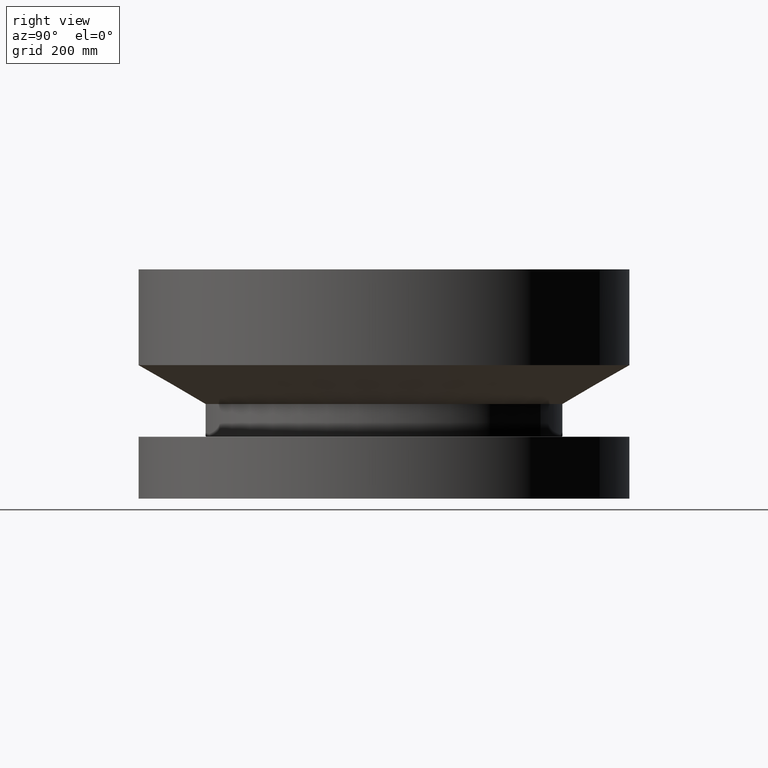
[diagram: clean part render]
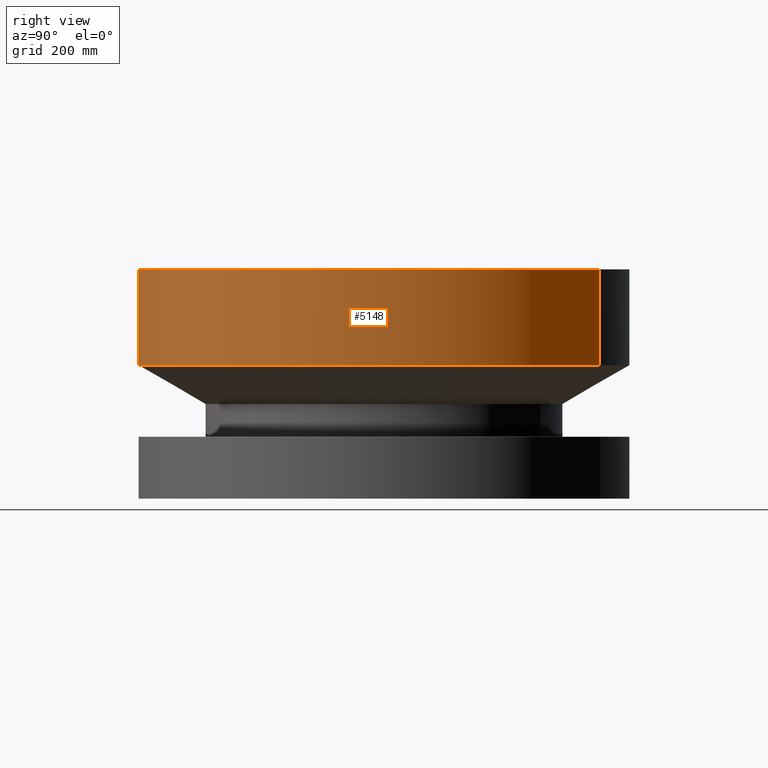
[diagram: same view with one face highlighted and labeled with its STEP entity id]
A machine part, right view. The second image highlights one B-rep face of the part: STEP entity #5148.
In plain terms, the highlighted cylindrical surface (partial cylindrical patch) has radius 428.625 mm, axis along (0, 0, -1).
Its self-contained STEP definition (entity closure, byte-faithful):
#501=AXIS2_PLACEMENT_3D('Cylinder Axis2P3D',#498,#499,#500) ;
#2251=AXIS2_PLACEMENT_3D('Circle Axis2P3D',#2249,#2250,$) ;
#5132=AXIS2_PLACEMENT_3D('Circle Axis2P3D',#5130,#5131,$) ;
#498=CARTESIAN_POINT('Axis2P3D Location',(0.,0.,7.75000000003)) ;
#2246=CARTESIAN_POINT('Vertex',(8.09030596398,14.809205732,9.17024499504)) ;
#2249=CARTESIAN_POINT('Axis2P3D Location',(0.,0.,9.17024499504)) ;
#2253=CARTESIAN_POINT('Vertex',(-8.09030596398,-14.809205732,9.17024499504)) ;
#5123=CARTESIAN_POINT('Line Origine',(8.09030596398,14.809205732,12.4601224976)) ;
#5127=CARTESIAN_POINT('Vertex',(8.09030596398,14.809205732,15.7500000001)) ;
#5130=CARTESIAN_POINT('Axis2P3D Location',(0.,0.,15.7500000001)) ;
#5134=CARTESIAN_POINT('Vertex',(-8.09030596398,-14.809205732,15.7500000001)) ;
#5137=CARTESIAN_POINT('Line Origine',(-8.09030596398,-14.809205732,12.4601224976)) ;
#499=DIRECTION('Axis2P3D Direction',(0.,0.,-0.0393700787402)) ;
#500=DIRECTION('Axis2P3D XDirection',(-0.0188750212049,-0.0345504945626,0.)) ;
#2250=DIRECTION('Axis2P3D Direction',(-0.,0.,0.0393700787402)) ;
#5124=DIRECTION('Vector Direction',(0.,0.,-0.0393700787402)) ;
#5131=DIRECTION('Axis2P3D Direction',(0.,0.,-0.0393700787402)) ;
#5138=DIRECTION('Vector Direction',(0.,0.,-0.0393700787402)) ;
#5125=VECTOR('Line Direction',#5124,0.0393700787402) ;
#5139=VECTOR('Line Direction',#5138,0.0393700787402) ;
#5143=ORIENTED_EDGE('',*,*,#2255,.F.) ;
#5144=ORIENTED_EDGE('',*,*,#5129,.T.) ;
#5145=ORIENTED_EDGE('',*,*,#5136,.T.) ;
#5146=ORIENTED_EDGE('',*,*,#5141,.F.) ;
#5148=ADVANCED_FACE('PartBody',(#5147),#502,.T.) ;
#2252=CIRCLE('generated circle',#2251,16.8750000001) ;
#5133=CIRCLE('generated circle',#5132,16.8750000001) ;
#502=CYLINDRICAL_SURFACE('generated cylinder',#501,16.8750000001) ;
#2255=EDGE_CURVE('',#2247,#2254,#2252,.F.) ;
#5129=EDGE_CURVE('',#2247,#5128,#5126,.F.) ;
#5136=EDGE_CURVE('',#5128,#5135,#5133,.T.) ;
#5141=EDGE_CURVE('',#2254,#5135,#5140,.F.) ;
#5142=EDGE_LOOP('',(#5143,#5144,#5145,#5146)) ;
#5147=FACE_OUTER_BOUND('',#5142,.T.) ;
#5126=LINE('Line',#5123,#5125) ;
#5140=LINE('Line',#5137,#5139) ;
#2247=VERTEX_POINT('',#2246) ;
#2254=VERTEX_POINT('',#2253) ;
#5128=VERTEX_POINT('',#5127) ;
#5135=VERTEX_POINT('',#5134) ;